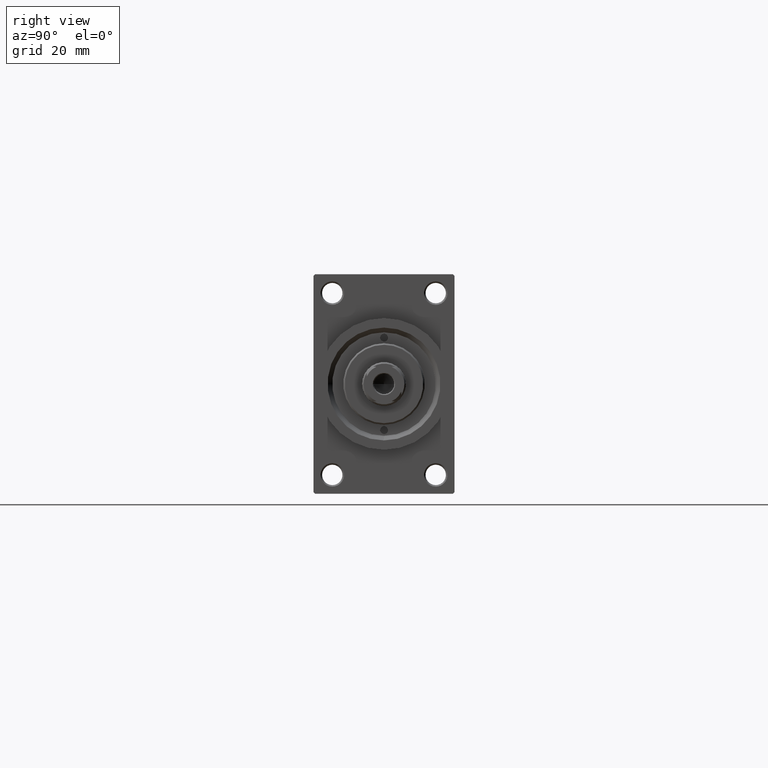
[diagram: clean part render]
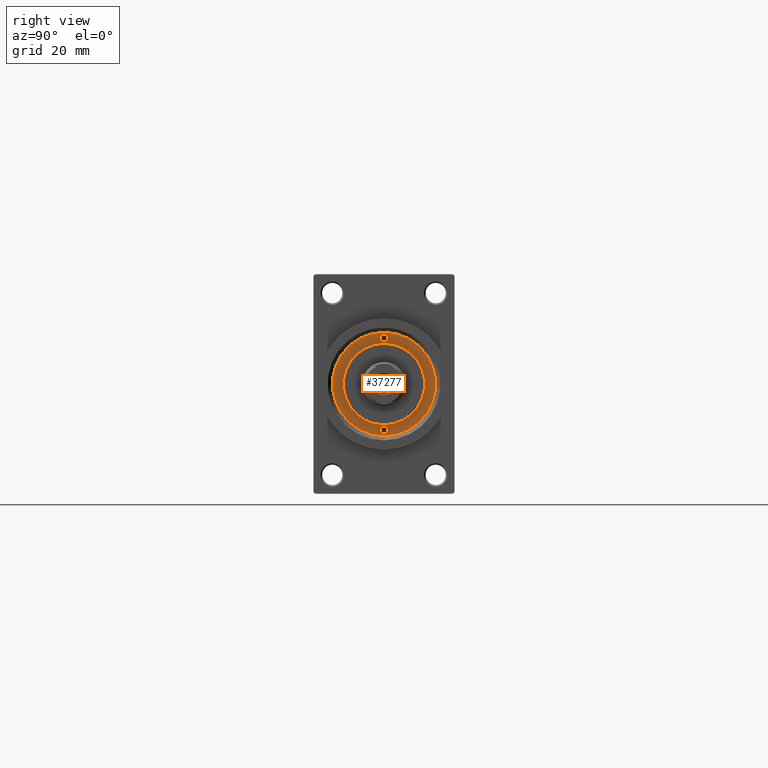
[diagram: same view with one face highlighted and labeled with its STEP entity id]
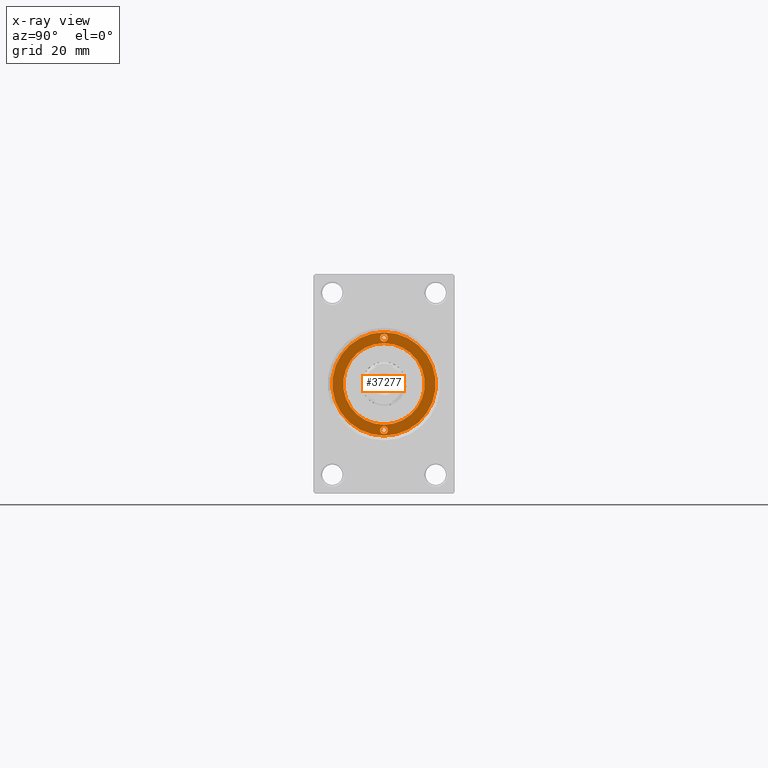
[diagram: x-ray of the same camera — body ghosted, the highlighted face saturated]
A machine part, right view. The second image highlights one B-rep face of the part: STEP entity #37277.
The next image is the same camera in x-ray: the body ghosted, the highlighted face saturated — about 0% of this face is hidden behind the body in this view.
In plain terms, the highlighted planar face has unit normal (1, -0, -0).
Its self-contained STEP definition (entity closure, byte-faithful):
#937 = AXIS2_PLACEMENT_3D ( 'NONE', #34102, #45370, #8499 ) ;
#1450 = AXIS2_PLACEMENT_3D ( 'NONE', #20994, #14300, #2584 ) ;
#1891 = DIRECTION ( 'NONE',  ( 1.000000000000000000, 0.000000000000000000, 0.000000000000000000 ) ) ;
#2584 = DIRECTION ( 'NONE',  ( 1.000000000000000000, 0.000000000000000000, 0.000000000000000000 ) ) ;
#4286 = VERTEX_POINT ( 'NONE', #20778 ) ;
#4320 = EDGE_LOOP ( 'NONE', ( #8850, #30891 ) ) ;
#4522 = CIRCLE ( 'NONE', #40414, 1.249999999999997558 ) ;
#4624 = CARTESIAN_POINT ( 'NONE',  ( -16.50000000000000000, 0.000000000000000000, 43.25999999999999801 ) ) ;
#5156 = EDGE_CURVE ( 'NONE', #42006, #33641, #9099, .T. ) ;
#5911 = EDGE_CURVE ( 'NONE', #4286, #27040, #4522, .T. ) ;
#5991 = DIRECTION ( 'NONE',  ( 0.000000000000000000, 0.000000000000000000, 1.000000000000000000 ) ) ;
#6896 = DIRECTION ( 'NONE',  ( 1.000000000000000000, 0.000000000000000000, 0.000000000000000000 ) ) ;
#7038 = DIRECTION ( 'NONE',  ( 1.000000000000000000, 0.000000000000000000, -0.000000000000000000 ) ) ;
#8362 = CARTESIAN_POINT ( 'NONE',  ( 16.50000000000000000, 2.020667218593133100E-15, 43.25999999999999801 ) ) ;
#8499 = DIRECTION ( 'NONE',  ( 1.000000000000000000, 0.000000000000000000, 0.000000000000000000 ) ) ;
#8781 = CIRCLE ( 'NONE', #43947, 1.249999999999999334 ) ;
#8850 = ORIENTED_EDGE ( 'NONE', *, *, #5156, .F. ) ;
#9099 = CIRCLE ( 'NONE', #1450, 13.00000000000000178 ) ;
#9192 = CARTESIAN_POINT ( 'NONE',  ( -13.50000000000000000, 0.000000000000000000, 43.25999999999999801 ) ) ;
#9344 = AXIS2_PLACEMENT_3D ( 'NONE', #38941, #42779, #6896 ) ;
#10034 = EDGE_LOOP ( 'NONE', ( #18178, #37292 ) ) ;
#11209 = EDGE_CURVE ( 'NONE', #27040, #4286, #25585, .T. ) ;
#12141 = ORIENTED_EDGE ( 'NONE', *, *, #43880, .T. ) ;
#12462 = CIRCLE ( 'NONE', #18582, 16.50000000000000000 ) ;
#12588 = AXIS2_PLACEMENT_3D ( 'NONE', #24038, #46765, #28102 ) ;
#12646 = DIRECTION ( 'NONE',  ( -0.000000000000000000, -0.000000000000000000, 1.000000000000000000 ) ) ;
#13145 = DIRECTION ( 'NONE',  ( 1.000000000000000000, 0.000000000000000000, 0.000000000000000000 ) ) ;
#13171 = CIRCLE ( 'NONE', #9344, 13.00000000000000178 ) ;
#14300 = DIRECTION ( 'NONE',  ( 0.000000000000000000, 0.000000000000000000, 1.000000000000000000 ) ) ;
#14901 = FACE_OUTER_BOUND ( 'NONE', #44531, .T. ) ;
#17184 = CARTESIAN_POINT ( 'NONE',  ( -13.00000000000000178, 0.000000000000000000, 43.25999999999999801 ) ) ;
#17279 = CIRCLE ( 'NONE', #34893, 16.50000000000000000 ) ;
#17343 = AXIS2_PLACEMENT_3D ( 'NONE', #28564, #39792, #7038 ) ;
#18178 = ORIENTED_EDGE ( 'NONE', *, *, #23070, .F. ) ;
#18481 = FACE_BOUND ( 'NONE', #10034, .T. ) ;
#18582 = AXIS2_PLACEMENT_3D ( 'NONE', #31251, #31730, #34618 ) ;
#19634 = EDGE_CURVE ( 'NONE', #33641, #42006, #13171, .T. ) ;
#20778 = CARTESIAN_POINT ( 'NONE',  ( 15.99999999999999645, 0.000000000000000000, 43.25999999999999801 ) ) ;
#20788 = CARTESIAN_POINT ( 'NONE',  ( 0.000000000000000000, 0.000000000000000000, 43.25999999999999801 ) ) ;
#20994 = CARTESIAN_POINT ( 'NONE',  ( 0.000000000000000000, 0.000000000000000000, 43.25999999999999801 ) ) ;
#21652 = CARTESIAN_POINT ( 'NONE',  ( 13.50000000000000178, 1.530808498934188612E-16, 43.25999999999999801 ) ) ;
#22675 = DIRECTION ( 'NONE',  ( 1.000000000000000000, 0.000000000000000000, 0.000000000000000000 ) ) ;
#23070 = EDGE_CURVE ( 'NONE', #36546, #37431, #26148, .T. ) ;
#24038 = CARTESIAN_POINT ( 'NONE',  ( 14.75000000000000000, 0.000000000000000000, 43.25999999999999801 ) ) ;
#24544 = VERTEX_POINT ( 'NONE', #4624 ) ;
#25228 = FACE_BOUND ( 'NONE', #32833, .T. ) ;
#25585 = CIRCLE ( 'NONE', #12588, 1.249999999999997558 ) ;
#26148 = CIRCLE ( 'NONE', #937, 1.249999999999999334 ) ;
#26310 = ORIENTED_EDGE ( 'NONE', *, *, #5911, .F. ) ;
#27040 = VERTEX_POINT ( 'NONE', #21652 ) ;
#27534 = EDGE_CURVE ( 'NONE', #37431, #36546, #8781, .T. ) ;
#28102 = DIRECTION ( 'NONE',  ( 1.000000000000000000, 0.000000000000000000, 0.000000000000000000 ) ) ;
#28564 = CARTESIAN_POINT ( 'NONE',  ( 0.000000000000000000, 0.000000000000000000, 43.25999999999999801 ) ) ;
#30891 = ORIENTED_EDGE ( 'NONE', *, *, #19634, .F. ) ;
#31251 = CARTESIAN_POINT ( 'NONE',  ( 0.000000000000000000, 0.000000000000000000, 43.25999999999999801 ) ) ;
#31730 = DIRECTION ( 'NONE',  ( 0.000000000000000000, 0.000000000000000000, 1.000000000000000000 ) ) ;
#32833 = EDGE_LOOP ( 'NONE', ( #26310, #40419 ) ) ;
#32862 = PLANE ( 'NONE',  #17343 ) ;
#32900 = EDGE_CURVE ( 'NONE', #42538, #24544, #17279, .T. ) ;
#33099 = FACE_BOUND ( 'NONE', #4320, .T. ) ;
#33233 = DIRECTION ( 'NONE',  ( -0.000000000000000000, -0.000000000000000000, 1.000000000000000000 ) ) ;
#33641 = VERTEX_POINT ( 'NONE', #34943 ) ;
#34102 = CARTESIAN_POINT ( 'NONE',  ( -14.75000000000000000, 0.000000000000000000, 43.25999999999999801 ) ) ;
#34618 = DIRECTION ( 'NONE',  ( 1.000000000000000000, 0.000000000000000000, 0.000000000000000000 ) ) ;
#34667 = CARTESIAN_POINT ( 'NONE',  ( 14.75000000000000000, 0.000000000000000000, 43.25999999999999801 ) ) ;
#34893 = AXIS2_PLACEMENT_3D ( 'NONE', #20788, #5991, #13145 ) ;
#34943 = CARTESIAN_POINT ( 'NONE',  ( 13.00000000000000178, 1.592040838891559293E-15, 43.25999999999999801 ) ) ;
#36546 = VERTEX_POINT ( 'NONE', #9192 ) ;
#37277 = ADVANCED_FACE ( 'NONE', ( #18481, #25228, #33099, #14901 ), #32862, .T. ) ;
#37292 = ORIENTED_EDGE ( 'NONE', *, *, #27534, .F. ) ;
#37431 = VERTEX_POINT ( 'NONE', #42859 ) ;
#38941 = CARTESIAN_POINT ( 'NONE',  ( 0.000000000000000000, 0.000000000000000000, 43.25999999999999801 ) ) ;
#39792 = DIRECTION ( 'NONE',  ( 0.000000000000000000, 0.000000000000000000, 1.000000000000000000 ) ) ;
#40414 = AXIS2_PLACEMENT_3D ( 'NONE', #34667, #12646, #1891 ) ;
#40419 = ORIENTED_EDGE ( 'NONE', *, *, #11209, .F. ) ;
#42006 = VERTEX_POINT ( 'NONE', #17184 ) ;
#42538 = VERTEX_POINT ( 'NONE', #8362 ) ;
#42779 = DIRECTION ( 'NONE',  ( 0.000000000000000000, 0.000000000000000000, 1.000000000000000000 ) ) ;
#42859 = CARTESIAN_POINT ( 'NONE',  ( -16.00000000000000000, 1.530808498934188859E-16, 43.25999999999999801 ) ) ;
#43880 = EDGE_CURVE ( 'NONE', #24544, #42538, #12462, .T. ) ;
#43947 = AXIS2_PLACEMENT_3D ( 'NONE', #44714, #33233, #22675 ) ;
#44531 = EDGE_LOOP ( 'NONE', ( #12141, #44668 ) ) ;
#44668 = ORIENTED_EDGE ( 'NONE', *, *, #32900, .T. ) ;
#44714 = CARTESIAN_POINT ( 'NONE',  ( -14.75000000000000000, 0.000000000000000000, 43.25999999999999801 ) ) ;
#45370 = DIRECTION ( 'NONE',  ( -0.000000000000000000, -0.000000000000000000, 1.000000000000000000 ) ) ;
#46765 = DIRECTION ( 'NONE',  ( -0.000000000000000000, -0.000000000000000000, 1.000000000000000000 ) ) ;